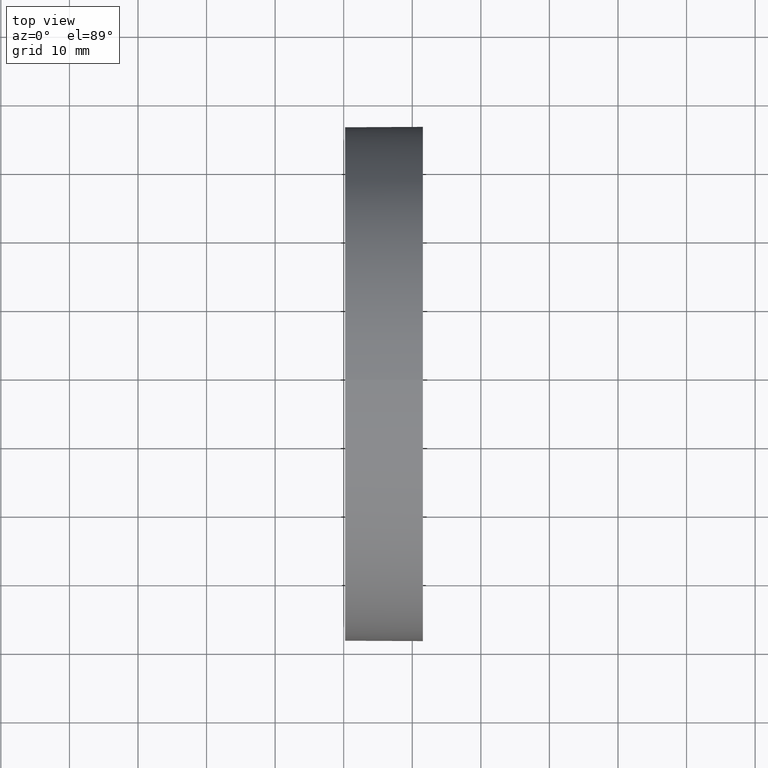
[diagram: clean part render]
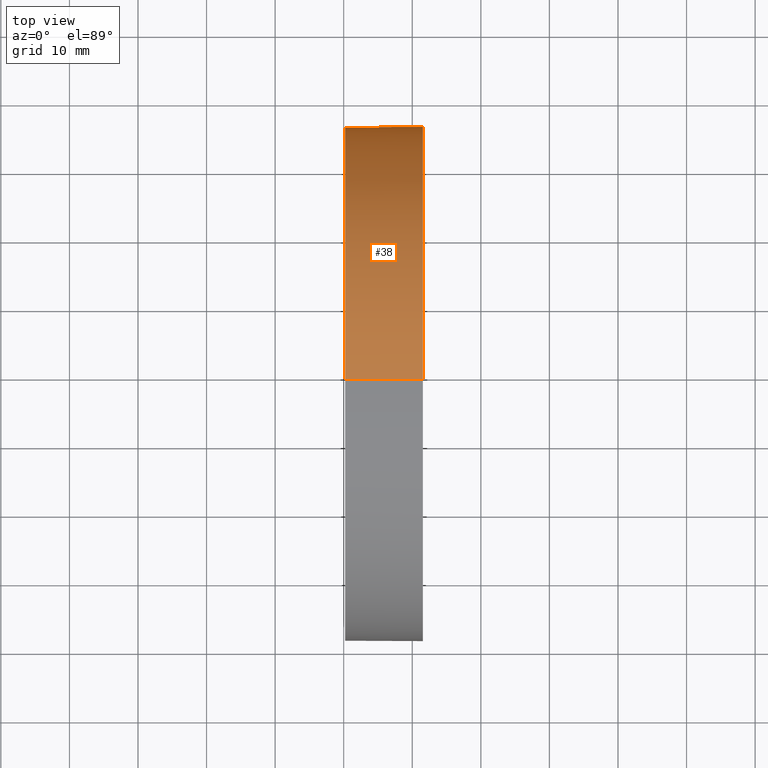
[diagram: same view with one face highlighted and labeled with its STEP entity id]
A machine part, top view. The second image highlights one B-rep face of the part: STEP entity #38.
In plain terms, the highlighted cylindrical surface (partial cylindrical patch) has radius 37.5 mm, axis along (-1, -0, -0).
Its self-contained STEP definition (entity closure, byte-faithful):
#6 = CARTESIAN_POINT ( 'NONE',  ( 217.9702860043302100, 138.7560422467448700, 0.0000000000000000000 ) ) ;
#8 = DIRECTION ( 'NONE',  ( 0.0000000000000000000, 0.0000000000000000000, 1.000000000000000000 ) ) ;
#11 = ORIENTED_EDGE ( 'NONE', *, *, #42, .T. ) ;
#18 = AXIS2_PLACEMENT_3D ( 'NONE', #27, #92, #8 ) ;
#27 = CARTESIAN_POINT ( 'NONE',  ( 241.5525897013507700, 138.7560422467448700, 0.0000000000000000000 ) ) ;
#34 = AXIS2_PLACEMENT_3D ( 'NONE', #156, #63, #107 ) ;
#36 = VERTEX_POINT ( 'NONE', #45 ) ;
#38 = ADVANCED_FACE ( 'NONE', ( #113 ), #184, .T. ) ;
#42 = EDGE_CURVE ( 'NONE', #138, #136, #69, .T. ) ;
#43 = DIRECTION ( 'NONE',  ( -1.000000000000000000, -0.0000000000000000000, -0.0000000000000000000 ) ) ;
#45 = CARTESIAN_POINT ( 'NONE',  ( 230.1996119052661200, 138.7560422467448700, 37.50000000000000700 ) ) ;
#46 = DIRECTION ( 'NONE',  ( -1.000000000000000000, -0.0000000000000000000, -0.0000000000000000000 ) ) ;
#48 = ORIENTED_EDGE ( 'NONE', *, *, #72, .T. ) ;
#50 = CARTESIAN_POINT ( 'NONE',  ( 230.1996119052661200, 138.7560422467448700, 0.0000000000000000000 ) ) ;
#55 = EDGE_CURVE ( 'NONE', #36, #136, #174, .T. ) ;
#59 = CARTESIAN_POINT ( 'NONE',  ( 217.9702860043302100, 138.7560422467448700, -37.50000000000000700 ) ) ;
#62 = DIRECTION ( 'NONE',  ( 0.0000000000000000000, 0.0000000000000000000, 1.000000000000000000 ) ) ;
#63 = DIRECTION ( 'NONE',  ( -1.000000000000000000, -0.0000000000000000000, -0.0000000000000000000 ) ) ;
#64 = CARTESIAN_POINT ( 'NONE',  ( 230.1996119052661200, 138.7560422467448700, -37.50000000000000700 ) ) ;
#66 = CIRCLE ( 'NONE', #34, 37.50000000000000700 ) ;
#69 = LINE ( 'NONE', #59, #121 ) ;
#71 = DIRECTION ( 'NONE',  ( 0.0000000000000000000, 0.0000000000000000000, 1.000000000000000000 ) ) ;
#72 = EDGE_CURVE ( 'NONE', #73, #138, #66, .T. ) ;
#73 = VERTEX_POINT ( 'NONE', #105 ) ;
#74 = EDGE_CURVE ( 'NONE', #88, #36, #149, .T. ) ;
#82 = AXIS2_PLACEMENT_3D ( 'NONE', #6, #43, #71 ) ;
#88 = VERTEX_POINT ( 'NONE', #144 ) ;
#89 = ORIENTED_EDGE ( 'NONE', *, *, #74, .F. ) ;
#92 = DIRECTION ( 'NONE',  ( -1.000000000000000000, -0.0000000000000000000, -0.0000000000000000000 ) ) ;
#95 = ORIENTED_EDGE ( 'NONE', *, *, #55, .F. ) ;
#100 = EDGE_CURVE ( 'NONE', #88, #73, #171, .T. ) ;
#102 = DIRECTION ( 'NONE',  ( -1.000000000000000000, -0.0000000000000000000, -0.0000000000000000000 ) ) ;
#105 = CARTESIAN_POINT ( 'NONE',  ( 241.5525897013507400, 176.2560422467447800, 0.0000000000000000000 ) ) ;
#107 = DIRECTION ( 'NONE',  ( 0.0000000000000000000, 0.0000000000000000000, 1.000000000000000000 ) ) ;
#113 = FACE_OUTER_BOUND ( 'NONE', #154, .T. ) ;
#114 = AXIS2_PLACEMENT_3D ( 'NONE', #50, #46, #62 ) ;
#120 = DIRECTION ( 'NONE',  ( -1.000000000000000000, -0.0000000000000000000, -0.0000000000000000000 ) ) ;
#121 = VECTOR ( 'NONE', #102, 1000.000000000000000 ) ;
#136 = VERTEX_POINT ( 'NONE', #64 ) ;
#138 = VERTEX_POINT ( 'NONE', #160 ) ;
#144 = CARTESIAN_POINT ( 'NONE',  ( 241.5525897013507700, 138.7560422467448700, 37.50000000000000700 ) ) ;
#149 = LINE ( 'NONE', #157, #167 ) ;
#154 = EDGE_LOOP ( 'NONE', ( #48, #11, #95, #89, #176 ) ) ;
#156 = CARTESIAN_POINT ( 'NONE',  ( 241.5525897013507700, 138.7560422467448700, 0.0000000000000000000 ) ) ;
#157 = CARTESIAN_POINT ( 'NONE',  ( 217.9702860043302100, 138.7560422467448700, 37.50000000000000700 ) ) ;
#160 = CARTESIAN_POINT ( 'NONE',  ( 241.5525897013507700, 138.7560422467448700, -37.50000000000000700 ) ) ;
#167 = VECTOR ( 'NONE', #120, 1000.000000000000000 ) ;
#171 = CIRCLE ( 'NONE', #18, 37.50000000000000700 ) ;
#174 = CIRCLE ( 'NONE', #114, 37.50000000000000700 ) ;
#176 = ORIENTED_EDGE ( 'NONE', *, *, #100, .T. ) ;
#184 = CYLINDRICAL_SURFACE ( 'NONE', #82, 37.50000000000000700 ) ;